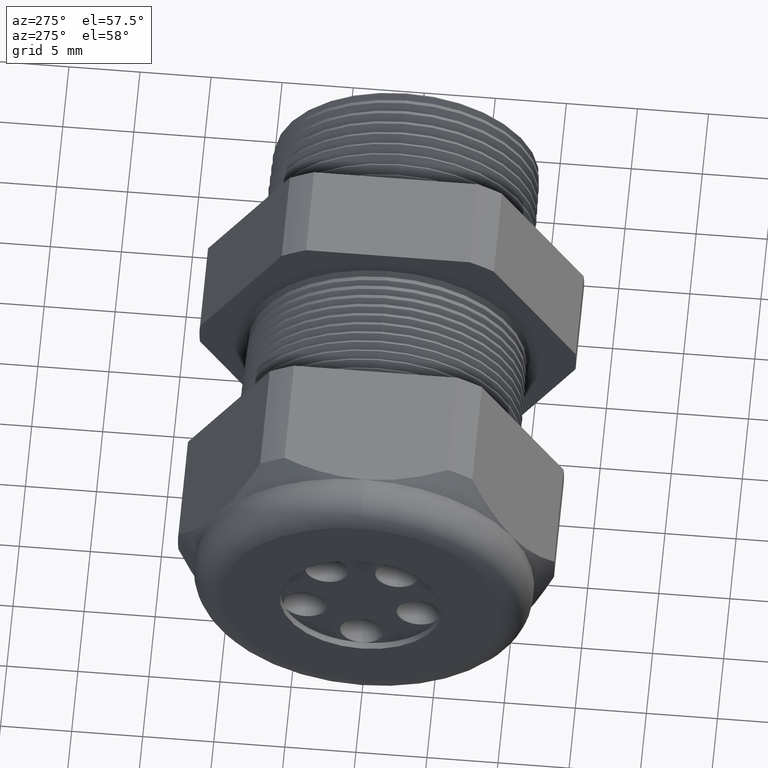
[diagram: clean part render]
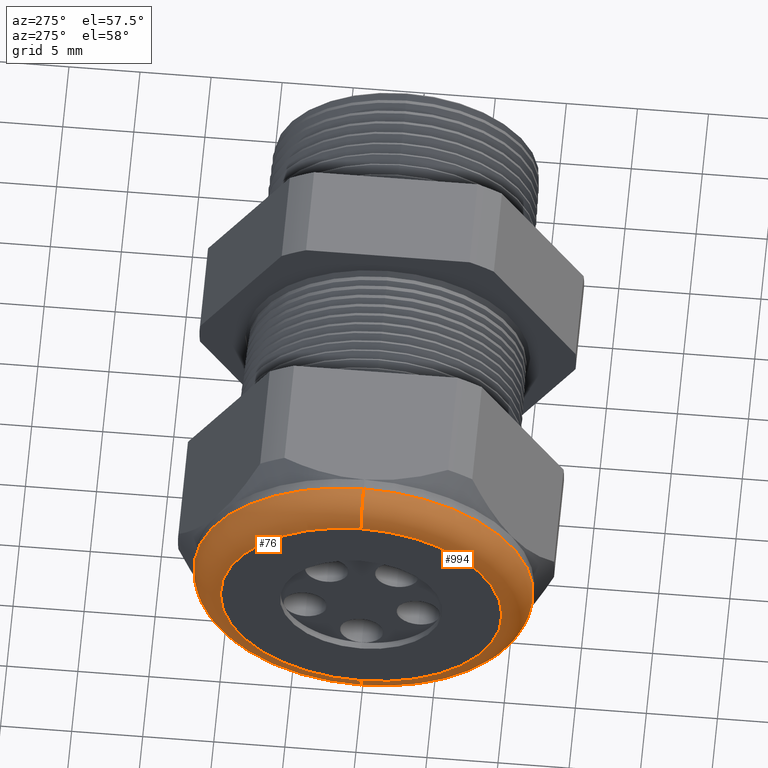
[diagram: same view with one multi-face feature highlighted, each face labeled with its STEP entity id]
A machine part, auxiliary view. The highlighted faces form ONE feature: a constant-radius fillet chain: 2 tangent blend faces with common blend radius 2.032 mm. The faces share edges in the B-rep.
Their STEP definitions:
[1] entity #76 (Torus):
#14 = VERTEX_POINT ( 'NONE', #1877 ) ;
#15 = ORIENTED_EDGE ( 'NONE', *, *, #16, .F. ) ;
#16 = EDGE_CURVE ( 'NONE', #24, #14, #1876, .T. ) ;
#17 = VERTEX_POINT ( 'NONE', #1871 ) ;
#18 = VERTEX_POINT ( 'NONE', #1870 ) ;
#22 = ORIENTED_EDGE ( 'NONE', *, *, #23, .T. ) ;
#23 = EDGE_CURVE ( 'NONE', #18, #14, #1929, .T. ) ;
#24 = VERTEX_POINT ( 'NONE', #1924 ) ;
#27 = EDGE_CURVE ( 'NONE', #18, #17, #1921, .T. ) ;
#67 = ORIENTED_EDGE ( 'NONE', *, *, #27, .F. ) ;
#72 = EDGE_LOOP ( 'NONE', ( #67, #22, #15, #5375 ) ) ;
#76 = ADVANCED_FACE ( 'NONE', ( #1969 ), #1968, .T. ) ;
#1870 = CARTESIAN_POINT ( 'NONE',  ( -1.330000000000000100, 0.0000000000000000000, -0.4699999999999999200 ) ) ;
#1871 = CARTESIAN_POINT ( 'NONE',  ( -1.330000000000000100, 5.755839955992558400E-017, 0.4699999999999999200 ) ) ;
#1872 = DIRECTION ( 'NONE',  ( 0.0000000000000000000, 0.0000000000000000000, 1.000000000000000000 ) ) ;
#1873 = DIRECTION ( 'NONE',  ( -1.000000000000000000, 0.0000000000000000000, 0.0000000000000000000 ) ) ;
#1874 = CARTESIAN_POINT ( 'NONE',  ( -1.409999999999999900, 0.0000000000000000000, 0.0000000000000000000 ) ) ;
#1875 = AXIS2_PLACEMENT_3D ( 'NONE', #1874, #1873, #1872 ) ;
#1876 = CIRCLE ( 'NONE', #1875, 0.3899999999999999600 ) ;
#1877 = CARTESIAN_POINT ( 'NONE',  ( -1.409999999999999900, 5.265981236333617600E-017, -0.3899999999999999600 ) ) ;
#1917 = DIRECTION ( 'NONE',  ( 0.0000000000000000000, 0.0000000000000000000, 1.000000000000000000 ) ) ;
#1918 = DIRECTION ( 'NONE',  ( 1.000000000000000000, 0.0000000000000000000, 0.0000000000000000000 ) ) ;
#1919 = CARTESIAN_POINT ( 'NONE',  ( -1.330000000000000100, 0.0000000000000000000, 0.0000000000000000000 ) ) ;
#1920 = AXIS2_PLACEMENT_3D ( 'NONE', #1919, #1918, #1917 ) ;
#1921 = CIRCLE ( 'NONE', #1920, 0.4699999999999999200 ) ;
#1924 = CARTESIAN_POINT ( 'NONE',  ( -1.409999999999999900, 0.0000000000000000000, 0.3899999999999999600 ) ) ;
#1925 = DIRECTION ( 'NONE',  ( 0.0000000000000000000, -1.224646799147353900E-016, 1.000000000000000000 ) ) ;
#1926 = DIRECTION ( 'NONE',  ( 0.0000000000000000000, 1.000000000000000000, 1.224646799147353200E-016 ) ) ;
#1927 = CARTESIAN_POINT ( 'NONE',  ( -1.330000000000000100, 4.776122516674676800E-017, -0.3899999999999999600 ) ) ;
#1928 = AXIS2_PLACEMENT_3D ( 'NONE', #1927, #1926, #1925 ) ;
#1929 = CIRCLE ( 'NONE', #1928, 0.07999999999999996000 ) ;
#1965 = DIRECTION ( 'NONE',  ( 0.0000000000000000000, 0.0000000000000000000, 1.000000000000000000 ) ) ;
#1966 = DIRECTION ( 'NONE',  ( -1.000000000000000000, 0.0000000000000000000, 0.0000000000000000000 ) ) ;
#1967 = AXIS2_PLACEMENT_3D ( 'NONE', #1975, #1966, #1965 ) ;
#1968 = TOROIDAL_SURFACE ( 'NONE', #1967, 0.3899999999999999600, 0.08000000000000000200 ) ;
#1969 = FACE_OUTER_BOUND ( 'NONE', #72, .T. ) ;
#1975 = CARTESIAN_POINT ( 'NONE',  ( -1.330000000000000100, 0.0000000000000000000, 0.0000000000000000000 ) ) ;
#5235 = DIRECTION ( 'NONE',  ( 0.0000000000000000000, 0.0000000000000000000, -1.000000000000000000 ) ) ;
#5236 = DIRECTION ( 'NONE',  ( 0.0000000000000000000, -1.000000000000000000, 0.0000000000000000000 ) ) ;
#5237 = AXIS2_PLACEMENT_3D ( 'NONE', #5243, #5236, #5235 ) ;
#5238 = CIRCLE ( 'NONE', #5237, 0.07999999999999996000 ) ;
#5243 = CARTESIAN_POINT ( 'NONE',  ( -1.330000000000000100, 0.0000000000000000000, 0.3899999999999999600 ) ) ;
#5375 = ORIENTED_EDGE ( 'NONE', *, *, #5376, .F. ) ;
#5376 = EDGE_CURVE ( 'NONE', #17, #24, #5238, .T. ) ;
[2] entity #994 (Torus):
#14 = VERTEX_POINT ( 'NONE', #1877 ) ;
#17 = VERTEX_POINT ( 'NONE', #1871 ) ;
#18 = VERTEX_POINT ( 'NONE', #1870 ) ;
#23 = EDGE_CURVE ( 'NONE', #18, #14, #1929, .T. ) ;
#24 = VERTEX_POINT ( 'NONE', #1924 ) ;
#774 = EDGE_CURVE ( 'NONE', #14, #24, #2890, .T. ) ;
#787 = EDGE_CURVE ( 'NONE', #17, #18, #3418, .T. ) ;
#940 = EDGE_LOOP ( 'NONE', ( #995, #996, #997, #998 ) ) ;
#994 = ADVANCED_FACE ( 'NONE', ( #3748 ), #3747, .T. ) ;
#995 = ORIENTED_EDGE ( 'NONE', *, *, #23, .F. ) ;
#996 = ORIENTED_EDGE ( 'NONE', *, *, #787, .F. ) ;
#997 = ORIENTED_EDGE ( 'NONE', *, *, #5376, .T. ) ;
#998 = ORIENTED_EDGE ( 'NONE', *, *, #774, .F. ) ;
#1870 = CARTESIAN_POINT ( 'NONE',  ( -1.330000000000000100, 0.0000000000000000000, -0.4699999999999999200 ) ) ;
#1871 = CARTESIAN_POINT ( 'NONE',  ( -1.330000000000000100, 5.755839955992558400E-017, 0.4699999999999999200 ) ) ;
#1877 = CARTESIAN_POINT ( 'NONE',  ( -1.409999999999999900, 5.265981236333617600E-017, -0.3899999999999999600 ) ) ;
#1924 = CARTESIAN_POINT ( 'NONE',  ( -1.409999999999999900, 0.0000000000000000000, 0.3899999999999999600 ) ) ;
#1925 = DIRECTION ( 'NONE',  ( 0.0000000000000000000, -1.224646799147353900E-016, 1.000000000000000000 ) ) ;
#1926 = DIRECTION ( 'NONE',  ( 0.0000000000000000000, 1.000000000000000000, 1.224646799147353200E-016 ) ) ;
#1927 = CARTESIAN_POINT ( 'NONE',  ( -1.330000000000000100, 4.776122516674676800E-017, -0.3899999999999999600 ) ) ;
#1928 = AXIS2_PLACEMENT_3D ( 'NONE', #1927, #1926, #1925 ) ;
#1929 = CIRCLE ( 'NONE', #1928, 0.07999999999999996000 ) ;
#2377 = CARTESIAN_POINT ( 'NONE',  ( -1.409999999999999900, 0.0000000000000000000, 0.0000000000000000000 ) ) ;
#2884 = AXIS2_PLACEMENT_3D ( 'NONE', #2377, #3140, #3437 ) ;
#2890 = CIRCLE ( 'NONE', #2884, 0.3899999999999999600 ) ;
#3140 = DIRECTION ( 'NONE',  ( -1.000000000000000000, 0.0000000000000000000, 0.0000000000000000000 ) ) ;
#3410 = DIRECTION ( 'NONE',  ( 0.0000000000000000000, 0.0000000000000000000, 1.000000000000000000 ) ) ;
#3411 = DIRECTION ( 'NONE',  ( 1.000000000000000000, 0.0000000000000000000, 0.0000000000000000000 ) ) ;
#3412 = CARTESIAN_POINT ( 'NONE',  ( -1.330000000000000100, 0.0000000000000000000, 0.0000000000000000000 ) ) ;
#3413 = AXIS2_PLACEMENT_3D ( 'NONE', #3412, #3411, #3410 ) ;
#3418 = CIRCLE ( 'NONE', #3413, 0.4699999999999999200 ) ;
#3437 = DIRECTION ( 'NONE',  ( 0.0000000000000000000, 0.0000000000000000000, 1.000000000000000000 ) ) ;
#3744 = DIRECTION ( 'NONE',  ( 0.0000000000000000000, 0.0000000000000000000, 1.000000000000000000 ) ) ;
#3745 = DIRECTION ( 'NONE',  ( -1.000000000000000000, 0.0000000000000000000, 0.0000000000000000000 ) ) ;
#3746 = AXIS2_PLACEMENT_3D ( 'NONE', #3752, #3745, #3744 ) ;
#3747 = TOROIDAL_SURFACE ( 'NONE', #3746, 0.3899999999999999600, 0.08000000000000000200 ) ;
#3748 = FACE_OUTER_BOUND ( 'NONE', #940, .T. ) ;
#3752 = CARTESIAN_POINT ( 'NONE',  ( -1.330000000000000100, 0.0000000000000000000, 0.0000000000000000000 ) ) ;
#5235 = DIRECTION ( 'NONE',  ( 0.0000000000000000000, 0.0000000000000000000, -1.000000000000000000 ) ) ;
#5236 = DIRECTION ( 'NONE',  ( 0.0000000000000000000, -1.000000000000000000, 0.0000000000000000000 ) ) ;
#5237 = AXIS2_PLACEMENT_3D ( 'NONE', #5243, #5236, #5235 ) ;
#5238 = CIRCLE ( 'NONE', #5237, 0.07999999999999996000 ) ;
#5243 = CARTESIAN_POINT ( 'NONE',  ( -1.330000000000000100, 0.0000000000000000000, 0.3899999999999999600 ) ) ;
#5376 = EDGE_CURVE ( 'NONE', #17, #24, #5238, .T. ) ;